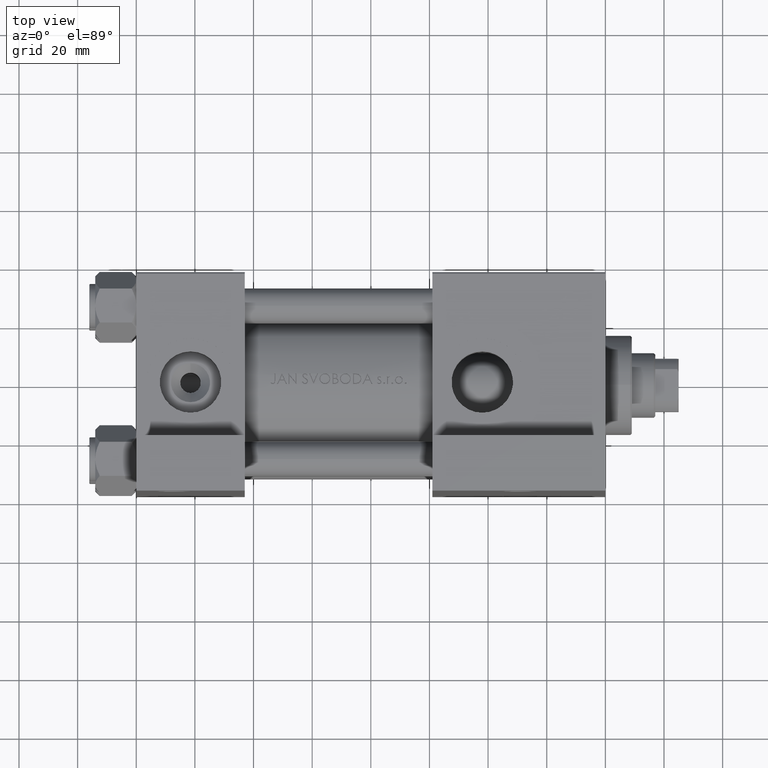
[diagram: clean part render]
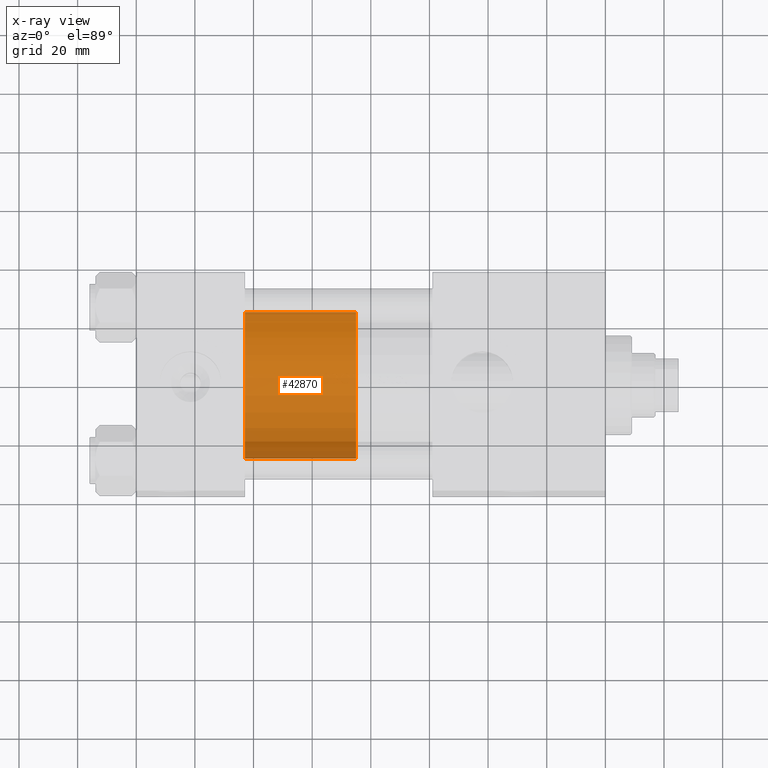
[diagram: x-ray — body ghosted, one internal face saturated and labeled with its STEP entity id]
A machine part, top view, then the same camera in x-ray: the body is ghosted and one INTERNAL B-rep face — a face not visible from any outside direction — is saturated and labeled: STEP entity #42870.
In plain terms, the highlighted cylindrical surface (partial cylindrical patch) has radius 25 mm, axis along (-1, 0, 0).
Its self-contained STEP definition (entity closure, byte-faithful):
#1376 = DIRECTION ( 'NONE',  ( -0.000000000000000000, -0.000000000000000000, -1.000000000000000000 ) ) ;
#2281 = VERTEX_POINT ( 'NONE', #39234 ) ;
#5650 = DIRECTION ( 'NONE',  ( 1.000000000000000000, 0.000000000000000000, 0.000000000000000000 ) ) ;
#5867 = CARTESIAN_POINT ( 'NONE',  ( -25.00000000000000000, 0.000000000000000000, 38.00000000000000000 ) ) ;
#7212 = EDGE_LOOP ( 'NONE', ( #40631, #24772, #8125, #9649 ) ) ;
#8125 = ORIENTED_EDGE ( 'NONE', *, *, #47653, .T. ) ;
#9389 = CARTESIAN_POINT ( 'NONE',  ( 0.000000000000000000, 0.000000000000000000, 0.000000000000000000 ) ) ;
#9649 = ORIENTED_EDGE ( 'NONE', *, *, #38832, .F. ) ;
#11911 = DIRECTION ( 'NONE',  ( 1.000000000000000000, 0.000000000000000000, 0.000000000000000000 ) ) ;
#12613 = VECTOR ( 'NONE', #35789, 1000.000000000000000 ) ;
#12890 = LINE ( 'NONE', #27835, #31697 ) ;
#13193 = CARTESIAN_POINT ( 'NONE',  ( -25.00000000000000000, 0.000000000000000000, 0.000000000000000000 ) ) ;
#13358 = VERTEX_POINT ( 'NONE', #13193 ) ;
#13590 = CIRCLE ( 'NONE', #22356, 25.00000000000000000 ) ;
#13859 = DIRECTION ( 'NONE',  ( 0.000000000000000000, 0.000000000000000000, 1.000000000000000000 ) ) ;
#16865 = CARTESIAN_POINT ( 'NONE',  ( -25.00000000000000000, 0.000000000000000000, 38.00000000000000000 ) ) ;
#17333 = LINE ( 'NONE', #16865, #12613 ) ;
#19599 = DIRECTION ( 'NONE',  ( -0.000000000000000000, -0.000000000000000000, -1.000000000000000000 ) ) ;
#20706 = EDGE_CURVE ( 'NONE', #30683, #2281, #12890, .T. ) ;
#22356 = AXIS2_PLACEMENT_3D ( 'NONE', #9389, #13859, #5650 ) ;
#24772 = ORIENTED_EDGE ( 'NONE', *, *, #20706, .T. ) ;
#27278 = AXIS2_PLACEMENT_3D ( 'NONE', #42529, #38544, #11911 ) ;
#27835 = CARTESIAN_POINT ( 'NONE',  ( 25.00000000000000000, 3.061616997868383043E-15, 38.00000000000000000 ) ) ;
#30683 = VERTEX_POINT ( 'NONE', #44543 ) ;
#31697 = VECTOR ( 'NONE', #19599, 1000.000000000000000 ) ;
#32580 = EDGE_CURVE ( 'NONE', #30683, #35537, #32778, .T. ) ;
#32778 = CIRCLE ( 'NONE', #27278, 25.00000000000000000 ) ;
#35537 = VERTEX_POINT ( 'NONE', #5867 ) ;
#35789 = DIRECTION ( 'NONE',  ( -0.000000000000000000, -0.000000000000000000, -1.000000000000000000 ) ) ;
#36007 = CYLINDRICAL_SURFACE ( 'NONE', #46915, 25.00000000000000000 ) ;
#38544 = DIRECTION ( 'NONE',  ( 0.000000000000000000, 0.000000000000000000, 1.000000000000000000 ) ) ;
#38832 = EDGE_CURVE ( 'NONE', #35537, #13358, #17333, .T. ) ;
#39234 = CARTESIAN_POINT ( 'NONE',  ( 25.00000000000000000, 3.061616997868383043E-15, 0.000000000000000000 ) ) ;
#40631 = ORIENTED_EDGE ( 'NONE', *, *, #32580, .F. ) ;
#42529 = CARTESIAN_POINT ( 'NONE',  ( 0.000000000000000000, 0.000000000000000000, 38.00000000000000000 ) ) ;
#42870 = ADVANCED_FACE ( 'NONE', ( #43696 ), #36007, .T. ) ;
#43696 = FACE_OUTER_BOUND ( 'NONE', #7212, .T. ) ;
#44543 = CARTESIAN_POINT ( 'NONE',  ( 25.00000000000000000, 3.061616997868383043E-15, 38.00000000000000000 ) ) ;
#46915 = AXIS2_PLACEMENT_3D ( 'NONE', #47210, #1376, #47930 ) ;
#47210 = CARTESIAN_POINT ( 'NONE',  ( 0.000000000000000000, 0.000000000000000000, 38.00000000000000000 ) ) ;
#47653 = EDGE_CURVE ( 'NONE', #2281, #13358, #13590, .T. ) ;
#47930 = DIRECTION ( 'NONE',  ( -1.000000000000000000, 0.000000000000000000, 0.000000000000000000 ) ) ;